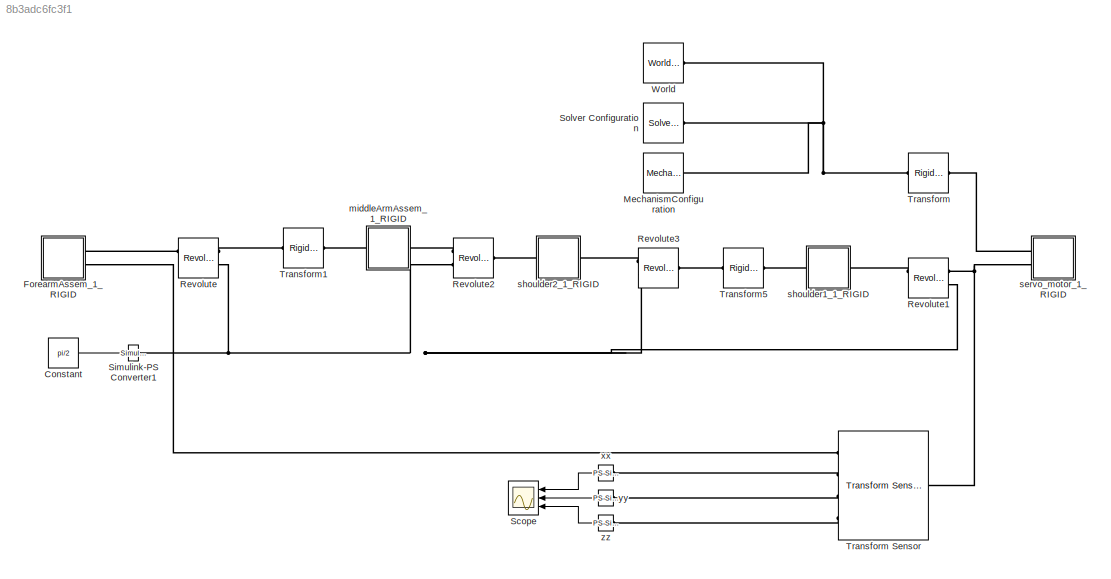
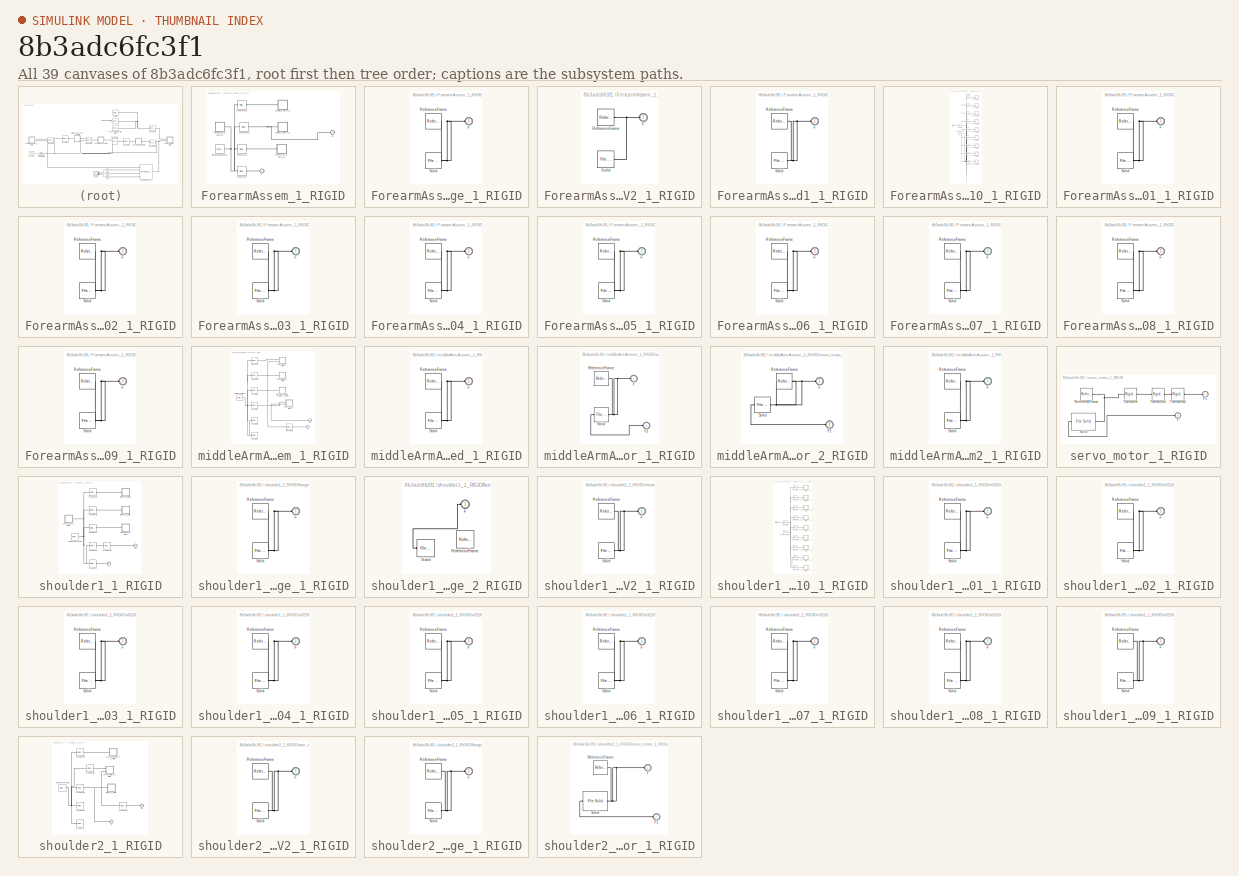
[diagram: thumbnail index - all 39 canvases of the model, root first then tree order]
MODEL slx_8b3adc6fc3f1
KIND model
CONFIG AbsTol = auto
CONFIG EnableMultiTasking = off
CONFIG FixedStep = auto
CONFIG MaxStep = auto
CONFIG MinStep = auto
CONFIG RelTol = 1e-3
CONFIG SampleTimeConstraint = Unconstrained
CONFIG SolverName = VariableStepAuto
CONFIG StartTime = 0.0
CONFIG StopTime = 10
WORKSPACE source: external: MATLAB File  (data not in archive)
BLOCK [Constant] Constant
  Value = pi/2
BLOCK [SubSystem] ForearmAssem_1_RIGID
  Ports = [0, 0, 0, 0, 0, 0, 2]
  RequestExecContextInheritance = off
BLOCK [PMIOPort] ForearmAssem_1_RIGID/F
  Side = Right
BLOCK [PMIOPort] ForearmAssem_1_RIGID/F1
  Port = 2
  Side = Right
BLOCK [Reference] ForearmAssem_1_RIGID/ReferenceFrame  REF=sm_lib/Frames and
Transforms/Reference
Frame
  Ports = [0, 0, 0, 0, 0, 0, 1]
  SourceBlock = sm_lib/Frames and\nTransforms/Reference\nFrame
  SourceProductBaseCode = MS
  SourceType = Reference\nFrame
BLOCK [Reference] ForearmAssem_1_RIGID/Transform  REF=sm_lib/Frames and
Transforms/Rigid
Transform
  Ports = [0, 0, 0, 0, 0, 1, 1]
  SourceBlock = sm_lib/Frames and\nTransforms/Rigid\nTransform
  SourceProductBaseCode = MS
  SourceType = Rigid\nTransform
BLOCK [Reference] ForearmAssem_1_RIGID/Transform1  REF=sm_lib/Frames and
Transforms/Rigid
Transform
  Ports = [0, 0, 0, 0, 0, 1, 1]
  SourceBlock = sm_lib/Frames and\nTransforms/Rigid\nTransform
  SourceProductBaseCode = MS
  SourceType = Rigid\nTransform
BLOCK [Reference] ForearmAssem_1_RIGID/Transform2  REF=sm_lib/Frames and
Transforms/Rigid
Transform
  Ports = [0, 0, 0, 0, 0, 1, 1]
  SourceBlock = sm_lib/Frames and\nTransforms/Rigid\nTransform
  SourceProductBaseCode = MS
  SourceType = Rigid\nTransform
BLOCK [Reference] ForearmAssem_1_RIGID/Transform3  REF=sm_lib/Frames and
Transforms/Rigid
Transform
  Ports = [0, 0, 0, 0, 0, 1, 1]
  SourceBlock = sm_lib/Frames and\nTransforms/Rigid\nTransform
  SourceProductBaseCode = MS
  SourceType = Rigid\nTransform
BLOCK [SubSystem] ForearmAssem_1_RIGID/flange_1_RIGID
  Ports = [0, 0, 0, 0, 0, 1]
  RequestExecContextInheritance = off
BLOCK [PMIOPort] ForearmAssem_1_RIGID/flange_1_RIGID/F
  Side = Left
BLOCK [Reference] ForearmAssem_1_RIGID/flange_1_RIGID/ReferenceFrame  REF=sm_lib/Frames and
Transforms/Reference
Frame
  Ports = [0, 0, 0, 0, 0, 0, 1]
  SourceBlock = sm_lib/Frames and\nTransforms/Reference\nFrame
  SourceProductBaseCode = MS
  SourceType = Reference\nFrame
BLOCK [Reference] ForearmAssem_1_RIGID/flange_1_RIGID/Solid  REF=sm_lib/Body Elements/File Solid
  Ports = [0, 0, 0, 0, 0, 0, 1]
  SourceBlock = sm_lib/Body Elements/File Solid
  SourceProductBaseCode = MS
  SourceType = File Solid
BLOCK [SubSystem] ForearmAssem_1_RIGID/forearmV2_1_RIGID
  Ports = [0, 0, 0, 0, 0, 1]
  RequestExecContextInheritance = off
BLOCK [PMIOPort] ForearmAssem_1_RIGID/forearmV2_1_RIGID/F
  Side = Left
BLOCK [Reference] ForearmAssem_1_RIGID/forearmV2_1_RIGID/ReferenceFrame  REF=sm_lib/Frames and
Transforms/Reference
Frame
  Ports = [0, 0, 0, 0, 0, 0, 1]
  SourceBlock = sm_lib/Frames and\nTransforms/Reference\nFrame
  SourceProductBaseCode = MS
  SourceType = Reference\nFrame
BLOCK [Reference] ForearmAssem_1_RIGID/forearmV2_1_RIGID/Solid  REF=sm_lib/Body Elements/File Solid
  Ports = [0, 0, 0, 0, 0, 0, 1]
  SourceBlock = sm_lib/Body Elements/File Solid
  SourceProductBaseCode = MS
  SourceType = File Solid
BLOCK [SubSystem] ForearmAssem_1_RIGID/hand1_1_RIGID
  Ports = [0, 0, 0, 0, 0, 1]
  RequestExecContextInheritance = off
BLOCK [PMIOPort] ForearmAssem_1_RIGID/hand1_1_RIGID/F
  Side = Left
BLOCK [Reference] ForearmAssem_1_RIGID/hand1_1_RIGID/ReferenceFrame  REF=sm_lib/Frames and
Transforms/Reference
Frame
  Ports = [0, 0, 0, 0, 0, 0, 1]
  SourceBlock = sm_lib/Frames and\nTransforms/Reference\nFrame
  SourceProductBaseCode = MS
  SourceType = Reference\nFrame
BLOCK [Reference] ForearmAssem_1_RIGID/hand1_1_RIGID/Solid  REF=sm_lib/Body Elements/File Solid
  Ports = [0, 0, 0, 0, 0, 0, 1]
  SourceBlock = sm_lib/Body Elements/File Solid
  SourceProductBaseCode = MS
  SourceType = File Solid
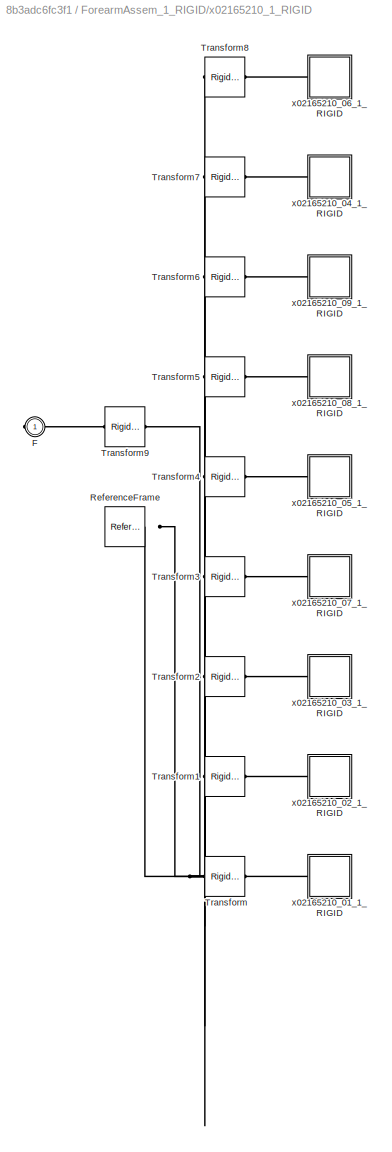
BLOCK [SubSystem] ForearmAssem_1_RIGID/x02165210_1_RIGID
  Ports = [0, 0, 0, 0, 0, 0, 1]
  RequestExecContextInheritance = off
BLOCK [PMIOPort] ForearmAssem_1_RIGID/x02165210_1_RIGID/F
  Side = Right
BLOCK [Reference] ForearmAssem_1_RIGID/x02165210_1_RIGID/ReferenceFrame  REF=sm_lib/Frames and
Transforms/Reference
Frame
  Ports = [0, 0, 0, 0, 0, 0, 1]
  SourceBlock = sm_lib/Frames and\nTransforms/Reference\nFrame
  SourceProductBaseCode = MS
  SourceType = Reference\nFrame
BLOCK [Reference] ForearmAssem_1_RIGID/x02165210_1_RIGID/Transform  REF=sm_lib/Frames and
Transforms/Rigid
Transform
  Ports = [0, 0, 0, 0, 0, 1, 1]
  SourceBlock = sm_lib/Frames and\nTransforms/Rigid\nTransform
  SourceProductBaseCode = MS
  SourceType = Rigid\nTransform
BLOCK [Reference] ForearmAssem_1_RIGID/x02165210_1_RIGID/Transform1  REF=sm_lib/Frames and
Transforms/Rigid
Transform
  Ports = [0, 0, 0, 0, 0, 1, 1]
  SourceBlock = sm_lib/Frames and\nTransforms/Rigid\nTransform
  SourceProductBaseCode = MS
  SourceType = Rigid\nTransform
BLOCK [Reference] ForearmAssem_1_RIGID/x02165210_1_RIGID/Transform2  REF=sm_lib/Frames and
Transforms/Rigid
Transform
  Ports = [0, 0, 0, 0, 0, 1, 1]
  SourceBlock = sm_lib/Frames and\nTransforms/Rigid\nTransform
  SourceProductBaseCode = MS
  SourceType = Rigid\nTransform
BLOCK [Reference] ForearmAssem_1_RIGID/x02165210_1_RIGID/Transform3  REF=sm_lib/Frames and
Transforms/Rigid
Transform
  Ports = [0, 0, 0, 0, 0, 1, 1]
  SourceBlock = sm_lib/Frames and\nTransforms/Rigid\nTransform
  SourceProductBaseCode = MS
  SourceType = Rigid\nTransform
BLOCK [Reference] ForearmAssem_1_RIGID/x02165210_1_RIGID/Transform4  REF=sm_lib/Frames and
Transforms/Rigid
Transform
  Ports = [0, 0, 0, 0, 0, 1, 1]
  SourceBlock = sm_lib/Frames and\nTransforms/Rigid\nTransform
  SourceProductBaseCode = MS
  SourceType = Rigid\nTransform
BLOCK [Reference] ForearmAssem_1_RIGID/x02165210_1_RIGID/Transform5  REF=sm_lib/Frames and
Transforms/Rigid
Transform
  Ports = [0, 0, 0, 0, 0, 1, 1]
  SourceBlock = sm_lib/Frames and\nTransforms/Rigid\nTransform
  SourceProductBaseCode = MS
  SourceType = Rigid\nTransform
BLOCK [Reference] ForearmAssem_1_RIGID/x02165210_1_RIGID/Transform6  REF=sm_lib/Frames and
Transforms/Rigid
Transform
  Ports = [0, 0, 0, 0, 0, 1, 1]
  SourceBlock = sm_lib/Frames and\nTransforms/Rigid\nTransform
  SourceProductBaseCode = MS
  SourceType = Rigid\nTransform
BLOCK [Reference] ForearmAssem_1_RIGID/x02165210_1_RIGID/Transform7  REF=sm_lib/Frames and
Transforms/Rigid
Transform
  Ports = [0, 0, 0, 0, 0, 1, 1]
  SourceBlock = sm_lib/Frames and\nTransforms/Rigid\nTransform
  SourceProductBaseCode = MS
  SourceType = Rigid\nTransform
BLOCK [Reference] ForearmAssem_1_RIGID/x02165210_1_RIGID/Transform8  REF=sm_lib/Frames and
Transforms/Rigid
Transform
  Ports = [0, 0, 0, 0, 0, 1, 1]
  SourceBlock = sm_lib/Frames and\nTransforms/Rigid\nTransform
  SourceProductBaseCode = MS
  SourceType = Rigid\nTransform
BLOCK [Reference] ForearmAssem_1_RIGID/x02165210_1_RIGID/Transform9  REF=sm_lib/Frames and
Transforms/Rigid
Transform
  Ports = [0, 0, 0, 0, 0, 1, 1]
  SourceBlock = sm_lib/Frames and\nTransforms/Rigid\nTransform
  SourceProductBaseCode = MS
  SourceType = Rigid\nTransform
BLOCK [SubSystem] ForearmAssem_1_RIGID/x02165210_1_RIGID/x02165210_01_1_RIGID
  Ports = [0, 0, 0, 0, 0, 1]
  RequestExecContextInheritance = off
BLOCK [PMIOPort] ForearmAssem_1_RIGID/x02165210_1_RIGID/x02165210_01_1_RIGID/F
  Side = Left
BLOCK [Reference] ForearmAssem_1_RIGID/x02165210_1_RIGID/x02165210_01_1_RIGID/ReferenceFrame  REF=sm_lib/Frames and
Transforms/Reference
Frame
  Ports = [0, 0, 0, 0, 0, 0, 1]
  SourceBlock = sm_lib/Frames and\nTransforms/Reference\nFrame
  SourceProductBaseCode = MS
  SourceType = Reference\nFrame
BLOCK [Reference] ForearmAssem_1_RIGID/x02165210_1_RIGID/x02165210_01_1_RIGID/Solid  REF=sm_lib/Body Elements/File Solid
  Ports = [0, 0, 0, 0, 0, 0, 1]
  SourceBlock = sm_lib/Body Elements/File Solid
  SourceProductBaseCode = MS
  SourceType = File Solid
BLOCK [SubSystem] ForearmAssem_1_RIGID/x02165210_1_RIGID/x02165210_02_1_RIGID
  Ports = [0, 0, 0, 0, 0, 1]
  RequestExecContextInheritance = off
BLOCK [PMIOPort] ForearmAssem_1_RIGID/x02165210_1_RIGID/x02165210_02_1_RIGID/F
  Side = Left
BLOCK [Reference] ForearmAssem_1_RIGID/x02165210_1_RIGID/x02165210_02_1_RIGID/ReferenceFrame  REF=sm_lib/Frames and
Transforms/Reference
Frame
  Ports = [0, 0, 0, 0, 0, 0, 1]
  SourceBlock = sm_lib/Frames and\nTransforms/Reference\nFrame
  SourceProductBaseCode = MS
  SourceType = Reference\nFrame
BLOCK [Reference] ForearmAssem_1_RIGID/x02165210_1_RIGID/x02165210_02_1_RIGID/Solid  REF=sm_lib/Body Elements/File Solid
  Ports = [0, 0, 0, 0, 0, 0, 1]
  SourceBlock = sm_lib/Body Elements/File Solid
  SourceProductBaseCode = MS
  SourceType = File Solid
BLOCK [SubSystem] ForearmAssem_1_RIGID/x02165210_1_RIGID/x02165210_03_1_RIGID
  Ports = [0, 0, 0, 0, 0, 1]
  RequestExecContextInheritance = off
BLOCK [PMIOPort] ForearmAssem_1_RIGID/x02165210_1_RIGID/x02165210_03_1_RIGID/F
  Side = Left
BLOCK [Reference] ForearmAssem_1_RIGID/x02165210_1_RIGID/x02165210_03_1_RIGID/ReferenceFrame  REF=sm_lib/Frames and
Transforms/Reference
Frame
  Ports = [0, 0, 0, 0, 0, 0, 1]
  SourceBlock = sm_lib/Frames and\nTransforms/Reference\nFrame
  SourceProductBaseCode = MS
  SourceType = Reference\nFrame
BLOCK [Reference] ForearmAssem_1_RIGID/x02165210_1_RIGID/x02165210_03_1_RIGID/Solid  REF=sm_lib/Body Elements/File Solid
  Ports = [0, 0, 0, 0, 0, 0, 1]
  SourceBlock = sm_lib/Body Elements/File Solid
  SourceProductBaseCode = MS
  SourceType = File Solid
BLOCK [SubSystem] ForearmAssem_1_RIGID/x02165210_1_RIGID/x02165210_04_1_RIGID
  Ports = [0, 0, 0, 0, 0, 1]
  RequestExecContextInheritance = off
BLOCK [PMIOPort] ForearmAssem_1_RIGID/x02165210_1_RIGID/x02165210_04_1_RIGID/F
  Side = Left
BLOCK [Reference] ForearmAssem_1_RIGID/x02165210_1_RIGID/x02165210_04_1_RIGID/ReferenceFrame  REF=sm_lib/Frames and
Transforms/Reference
Frame
  Ports = [0, 0, 0, 0, 0, 0, 1]
  SourceBlock = sm_lib/Frames and\nTransforms/Reference\nFrame
  SourceProductBaseCode = MS
  SourceType = Reference\nFrame
BLOCK [Reference] ForearmAssem_1_RIGID/x02165210_1_RIGID/x02165210_04_1_RIGID/Solid  REF=sm_lib/Body Elements/File Solid
  Ports = [0, 0, 0, 0, 0, 0, 1]
  SourceBlock = sm_lib/Body Elements/File Solid
  SourceProductBaseCode = MS
  SourceType = File Solid
BLOCK [SubSystem] ForearmAssem_1_RIGID/x02165210_1_RIGID/x02165210_05_1_RIGID
  Ports = [0, 0, 0, 0, 0, 1]
  RequestExecContextInheritance = off
BLOCK [PMIOPort] ForearmAssem_1_RIGID/x02165210_1_RIGID/x02165210_05_1_RIGID/F
  Side = Left
BLOCK [Reference] ForearmAssem_1_RIGID/x02165210_1_RIGID/x02165210_05_1_RIGID/ReferenceFrame  REF=sm_lib/Frames and
Transforms/Reference
Frame
  Ports = [0, 0, 0, 0, 0, 0, 1]
  SourceBlock = sm_lib/Frames and\nTransforms/Reference\nFrame
  SourceProductBaseCode = MS
  SourceType = Reference\nFrame
BLOCK [Reference] ForearmAssem_1_RIGID/x02165210_1_RIGID/x02165210_05_1_RIGID/Solid  REF=sm_lib/Body Elements/File Solid
  Ports = [0, 0, 0, 0, 0, 0, 1]
  SourceBlock = sm_lib/Body Elements/File Solid
  SourceProductBaseCode = MS
  SourceType = File Solid
BLOCK [SubSystem] ForearmAssem_1_RIGID/x02165210_1_RIGID/x02165210_06_1_RIGID
  Ports = [0, 0, 0, 0, 0, 1]
  RequestExecContextInheritance = off
BLOCK [PMIOPort] ForearmAssem_1_RIGID/x02165210_1_RIGID/x02165210_06_1_RIGID/F
  Side = Left
BLOCK [Reference] ForearmAssem_1_RIGID/x02165210_1_RIGID/x02165210_06_1_RIGID/ReferenceFrame  REF=sm_lib/Frames and
Transforms/Reference
Frame
  Ports = [0, 0, 0, 0, 0, 0, 1]
  SourceBlock = sm_lib/Frames and\nTransforms/Reference\nFrame
  SourceProductBaseCode = MS
  SourceType = Reference\nFrame
BLOCK [Reference] ForearmAssem_1_RIGID/x02165210_1_RIGID/x02165210_06_1_RIGID/Solid  REF=sm_lib/Body Elements/File Solid
  Ports = [0, 0, 0, 0, 0, 0, 1]
  SourceBlock = sm_lib/Body Elements/File Solid
  SourceProductBaseCode = MS
  SourceType = File Solid
BLOCK [SubSystem] ForearmAssem_1_RIGID/x02165210_1_RIGID/x02165210_07_1_RIGID
  Ports = [0, 0, 0, 0, 0, 1]
  RequestExecContextInheritance = off
BLOCK [PMIOPort] ForearmAssem_1_RIGID/x02165210_1_RIGID/x02165210_07_1_RIGID/F
  Side = Left
BLOCK [Reference] ForearmAssem_1_RIGID/x02165210_1_RIGID/x02165210_07_1_RIGID/ReferenceFrame  REF=sm_lib/Frames and
Transforms/Reference
Frame
  Ports = [0, 0, 0, 0, 0, 0, 1]
  SourceBlock = sm_lib/Frames and\nTransforms/Reference\nFrame
  SourceProductBaseCode = MS
  SourceType = Reference\nFrame
BLOCK [Reference] ForearmAssem_1_RIGID/x02165210_1_RIGID/x02165210_07_1_RIGID/Solid  REF=sm_lib/Body Elements/File Solid
  Ports = [0, 0, 0, 0, 0, 0, 1]
  SourceBlock = sm_lib/Body Elements/File Solid
  SourceProductBaseCode = MS
  SourceType = File Solid
BLOCK [SubSystem] ForearmAssem_1_RIGID/x02165210_1_RIGID/x02165210_08_1_RIGID
  Ports = [0, 0, 0, 0, 0, 1]
  RequestExecContextInheritance = off
BLOCK [PMIOPort] ForearmAssem_1_RIGID/x02165210_1_RIGID/x02165210_08_1_RIGID/F
  Side = Left
BLOCK [Reference] ForearmAssem_1_RIGID/x02165210_1_RIGID/x02165210_08_1_RIGID/ReferenceFrame  REF=sm_lib/Frames and
Transforms/Reference
Frame
  Ports = [0, 0, 0, 0, 0, 0, 1]
  SourceBlock = sm_lib/Frames and\nTransforms/Reference\nFrame
  SourceProductBaseCode = MS
  SourceType = Reference\nFrame
BLOCK [Reference] ForearmAssem_1_RIGID/x02165210_1_RIGID/x02165210_08_1_RIGID/Solid  REF=sm_lib/Body Elements/File Solid
  Ports = [0, 0, 0, 0, 0, 0, 1]
  SourceBlock = sm_lib/Body Elements/File Solid
  SourceProductBaseCode = MS
  SourceType = File Solid
BLOCK [SubSystem] ForearmAssem_1_RIGID/x02165210_1_RIGID/x02165210_09_1_RIGID
  Ports = [0, 0, 0, 0, 0, 1]
  RequestExecContextInheritance = off
BLOCK [PMIOPort] ForearmAssem_1_RIGID/x02165210_1_RIGID/x02165210_09_1_RIGID/F
  Side = Left
BLOCK [Reference] ForearmAssem_1_RIGID/x02165210_1_RIGID/x02165210_09_1_RIGID/ReferenceFrame  REF=sm_lib/Frames and
Transforms/Reference
Frame
  Ports = [0, 0, 0, 0, 0, 0, 1]
  SourceBlock = sm_lib/Frames and\nTransforms/Reference\nFrame
  SourceProductBaseCode = MS
  SourceType = Reference\nFrame
BLOCK [Reference] ForearmAssem_1_RIGID/x02165210_1_RIGID/x02165210_09_1_RIGID/Solid  REF=sm_lib/Body Elements/File Solid
  Ports = [0, 0, 0, 0, 0, 0, 1]
  SourceBlock = sm_lib/Body Elements/File Solid
  SourceProductBaseCode = MS
  SourceType = File Solid
BLOCK [Reference] MechanismConfiguration  REF=sm_lib/Utilities/Mechanism
Configuration
  Ports = [0, 0, 0, 0, 0, 0, 1]
  SourceBlock = sm_lib/Utilities/Mechanism\nConfiguration
  SourceProductBaseCode = MS
  SourceType = Mechanism\nConfiguration
BLOCK [Reference] Revolute  REF=sm_lib/Joints/Revolute Joint
  Ports = [0, 0, 0, 0, 0, 2, 2]
  SourceBlock = sm_lib/Joints/Revolute Joint
  SourceProductBaseCode = MS
  SourceType = Revolute Joint
BLOCK [Reference] Revolute1  REF=sm_lib/Joints/Revolute Joint
  Ports = [0, 0, 0, 0, 0, 2, 2]
  SourceBlock = sm_lib/Joints/Revolute Joint
  SourceProductBaseCode = MS
  SourceType = Revolute Joint
BLOCK [Reference] Revolute2  REF=sm_lib/Joints/Revolute Joint
  Ports = [0, 0, 0, 0, 0, 2, 1]
  SourceBlock = sm_lib/Joints/Revolute Joint
  SourceProductBaseCode = MS
  SourceType = Revolute Joint
BLOCK [Reference] Revolute3  REF=sm_lib/Joints/Revolute Joint
  Ports = [0, 0, 0, 0, 0, 2, 1]
  SourceBlock = sm_lib/Joints/Revolute Joint
  SourceProductBaseCode = MS
  SourceType = Revolute Joint
BLOCK [Scope] Scope
  Floating = off
  NumInputPorts = 3
  Ports = [3]
  ScopeSpecificationString = Simulink.scopes.TimeScopeBlockCfg('CurrentConfiguration', extmgr.ConfigurationSet(extmgr.Configuration('Core','General UI',true,'FigureColor',[1 1 1]),extmgr.Configuration('Core','Source UI',true),extmgr.Configuration('Sources','WiredSimulink',true),extmgr.Configuration('Visuals','Time Domain',true,'SerializedDisplays',{struct('MinYLimReal','-0.27881','MaxYLimReal','0.07813','YLabelReal','','MinYL...<+1711ch>
BLOCK [Reference] Simulink-PS Converter1  REF=nesl_utility/Simulink-PS
Converter
  Ports = [1, 0, 0, 0, 0, 0, 1]
  SourceBlock = nesl_utility/Simulink-PS\nConverter
  SourceProductBaseCode = PW,SS
  SourceType = Simulink-PS\nConverter
BLOCK [Reference] Solver Configuration  REF=nesl_utility/Solver
Configuration
  Ports = [0, 0, 0, 0, 0, 0, 1]
  SourceBlock = nesl_utility/Solver\nConfiguration
  SourceProductBaseCode = PW,SS
  SourceType = Solver\nConfiguration
BLOCK [Reference] Transform  REF=sm_lib/Frames and
Transforms/Rigid
Transform
  Ports = [0, 0, 0, 0, 0, 1, 1]
  SourceBlock = sm_lib/Frames and\nTransforms/Rigid\nTransform
  SourceProductBaseCode = MS
  SourceType = Rigid\nTransform
BLOCK [Reference] Transform Sensor  REF=sm_lib/Frames and
Transforms/Transform
Sensor
  Ports = [0, 0, 0, 0, 0, 1, 4]
  SourceBlock = sm_lib/Frames and\nTransforms/Transform\nSensor
  SourceProductBaseCode = MS
  SourceType = Transform\nSensor
BLOCK [Reference] Transform1  REF=sm_lib/Frames and
Transforms/Rigid
Transform
  Ports = [0, 0, 0, 0, 0, 1, 1]
  SourceBlock = sm_lib/Frames and\nTransforms/Rigid\nTransform
  SourceProductBaseCode = MS
  SourceType = Rigid\nTransform
BLOCK [Reference] Transform5  REF=sm_lib/Frames and
Transforms/Rigid
Transform
  Ports = [0, 0, 0, 0, 0, 1, 1]
  SourceBlock = sm_lib/Frames and\nTransforms/Rigid\nTransform
  SourceProductBaseCode = MS
  SourceType = Rigid\nTransform
BLOCK [Reference] World  REF=sm_lib/Frames and
Transforms/World Frame
  Ports = [0, 0, 0, 0, 0, 0, 1]
  SourceBlock = sm_lib/Frames and\nTransforms/World Frame
  SourceProductBaseCode = MS
  SourceType = World Frame
BLOCK [SubSystem] middleArmAssem_1_RIGID
  Ports = [0, 0, 0, 0, 0, 1, 1]
  RequestExecContextInheritance = off
BLOCK [PMIOPort] middleArmAssem_1_RIGID/F
  Side = Left
BLOCK [PMIOPort] middleArmAssem_1_RIGID/F1
  Port = 2
  Side = Right
BLOCK [Reference] middleArmAssem_1_RIGID/ReferenceFrame  REF=sm_lib/Frames and
Transforms/Reference
Frame
  Ports = [0, 0, 0, 0, 0, 0, 1]
  SourceBlock = sm_lib/Frames and\nTransforms/Reference\nFrame
  SourceProductBaseCode = MS
  SourceType = Reference\nFrame
BLOCK [Reference] middleArmAssem_1_RIGID/Transform  REF=sm_lib/Frames and
Transforms/Rigid
Transform
  Ports = [0, 0, 0, 0, 0, 1, 1]
  SourceBlock = sm_lib/Frames and\nTransforms/Rigid\nTransform
  SourceProductBaseCode = MS
  SourceType = Rigid\nTransform
BLOCK [Reference] middleArmAssem_1_RIGID/Transform1  REF=sm_lib/Frames and
Transforms/Rigid
Transform
  Ports = [0, 0, 0, 0, 0, 1, 1]
  SourceBlock = sm_lib/Frames and\nTransforms/Rigid\nTransform
  SourceProductBaseCode = MS
  SourceType = Rigid\nTransform
BLOCK [Reference] middleArmAssem_1_RIGID/Transform2  REF=sm_lib/Frames and
Transforms/Rigid
Transform
  Ports = [0, 0, 0, 0, 0, 1, 1]
  SourceBlock = sm_lib/Frames and\nTransforms/Rigid\nTransform
  SourceProductBaseCode = MS
  SourceType = Rigid\nTransform
BLOCK [Reference] middleArmAssem_1_RIGID/Transform3  REF=sm_lib/Frames and
Transforms/Rigid
Transform
  Ports = [0, 0, 0, 0, 0, 1, 1]
  SourceBlock = sm_lib/Frames and\nTransforms/Rigid\nTransform
  SourceProductBaseCode = MS
  SourceType = Rigid\nTransform
BLOCK [Reference] middleArmAssem_1_RIGID/Transform4  REF=sm_lib/Frames and
Transforms/Rigid
Transform
  Ports = [0, 0, 0, 0, 0, 1, 1]
  SourceBlock = sm_lib/Frames and\nTransforms/Rigid\nTransform
  SourceProductBaseCode = MS
  SourceType = Rigid\nTransform
BLOCK [Reference] middleArmAssem_1_RIGID/Transform5  REF=sm_lib/Frames and
Transforms/Rigid
Transform
  Ports = [0, 0, 0, 0, 0, 1, 1]
  SourceBlock = sm_lib/Frames and\nTransforms/Rigid\nTransform
  SourceProductBaseCode = MS
  SourceType = Rigid\nTransform
BLOCK [Reference] middleArmAssem_1_RIGID/Transform6  REF=sm_lib/Frames and
Transforms/Rigid
Transform
  Ports = [0, 0, 0, 0, 0, 1, 1]
  SourceBlock = sm_lib/Frames and\nTransforms/Rigid\nTransform
  SourceProductBaseCode = MS
  SourceType = Rigid\nTransform
BLOCK [SubSystem] middleArmAssem_1_RIGID/arm_connectorV2_modified_1_RIGID
  Ports = [0, 0, 0, 0, 0, 1]
  RequestExecContextInheritance = off
BLOCK [PMIOPort] middleArmAssem_1_RIGID/arm_connectorV2_modified_1_RIGID/F
  Side = Left
BLOCK [Reference] middleArmAssem_1_RIGID/arm_connectorV2_modified_1_RIGID/ReferenceFrame  REF=sm_lib/Frames and
Transforms/Reference
Frame
  Ports = [0, 0, 0, 0, 0, 0, 1]
  SourceBlock = sm_lib/Frames and\nTransforms/Reference\nFrame
  SourceProductBaseCode = MS
  SourceType = Reference\nFrame
BLOCK [Reference] middleArmAssem_1_RIGID/arm_connectorV2_modified_1_RIGID/Solid  REF=sm_lib/Body Elements/File Solid
  Ports = [0, 0, 0, 0, 0, 0, 1]
  SourceBlock = sm_lib/Body Elements/File Solid
  SourceProductBaseCode = MS
  SourceType = File Solid
BLOCK [SubSystem] middleArmAssem_1_RIGID/servo_motor_1_RIGID
  Ports = [0, 0, 0, 0, 0, 2]
  RequestExecContextInheritance = off
BLOCK [PMIOPort] middleArmAssem_1_RIGID/servo_motor_1_RIGID/F
  Side = Left
BLOCK [PMIOPort] middleArmAssem_1_RIGID/servo_motor_1_RIGID/F1
  Port = 2
  Side = Left
BLOCK [Reference] middleArmAssem_1_RIGID/servo_motor_1_RIGID/ReferenceFrame  REF=sm_lib/Frames and
Transforms/Reference
Frame
  Ports = [0, 0, 0, 0, 0, 0, 1]
  SourceBlock = sm_lib/Frames and\nTransforms/Reference\nFrame
  SourceProductBaseCode = MS
  SourceType = Reference\nFrame
BLOCK [Reference] middleArmAssem_1_RIGID/servo_motor_1_RIGID/Solid  REF=sm_lib/Body Elements/File Solid
  Ports = [0, 0, 0, 0, 0, 1, 1]
  SourceBlock = sm_lib/Body Elements/File Solid
  SourceProductBaseCode = MS
  SourceType = File Solid
BLOCK [SubSystem] middleArmAssem_1_RIGID/servo_motor_2_RIGID
  Ports = [0, 0, 0, 0, 0, 2]
  RequestExecContextInheritance = off
BLOCK [PMIOPort] middleArmAssem_1_RIGID/servo_motor_2_RIGID/F
  Side = Left
BLOCK [PMIOPort] middleArmAssem_1_RIGID/servo_motor_2_RIGID/F1
  Port = 2
  Side = Left
BLOCK [Reference] middleArmAssem_1_RIGID/servo_motor_2_RIGID/ReferenceFrame  REF=sm_lib/Frames and
Transforms/Reference
Frame
  Ports = [0, 0, 0, 0, 0, 0, 1]
  SourceBlock = sm_lib/Frames and\nTransforms/Reference\nFrame
  SourceProductBaseCode = MS
  SourceType = Reference\nFrame
BLOCK [Reference] middleArmAssem_1_RIGID/servo_motor_2_RIGID/Solid  REF=sm_lib/Body Elements/File Solid
  Ports = [0, 0, 0, 0, 0, 1, 1]
  SourceBlock = sm_lib/Body Elements/File Solid
  SourceProductBaseCode = MS
  SourceType = File Solid
BLOCK [SubSystem] middleArmAssem_1_RIGID/upper_arm2_1_RIGID
  Ports = [0, 0, 0, 0, 0, 1]
  RequestExecContextInheritance = off
BLOCK [PMIOPort] middleArmAssem_1_RIGID/upper_arm2_1_RIGID/F
  Side = Left
BLOCK [Reference] middleArmAssem_1_RIGID/upper_arm2_1_RIGID/ReferenceFrame  REF=sm_lib/Frames and
Transforms/Reference
Frame
  Ports = [0, 0, 0, 0, 0, 0, 1]
  SourceBlock = sm_lib/Frames and\nTransforms/Reference\nFrame
  SourceProductBaseCode = MS
  SourceType = Reference\nFrame
BLOCK [Reference] middleArmAssem_1_RIGID/upper_arm2_1_RIGID/Solid  REF=sm_lib/Body Elements/File Solid
  Ports = [0, 0, 0, 0, 0, 0, 1]
  SourceBlock = sm_lib/Body Elements/File Solid
  SourceProductBaseCode = MS
  SourceType = File Solid
BLOCK [SubSystem] servo_motor_1_RIGID
  Ports = [0, 0, 0, 0, 0, 2]
  RequestExecContextInheritance = off
BLOCK [PMIOPort] servo_motor_1_RIGID/F
  Port = 2
  Side = Left
BLOCK [PMIOPort] servo_motor_1_RIGID/F1
  Side = Left
BLOCK [Reference] servo_motor_1_RIGID/ReferenceFrame  REF=sm_lib/Frames and
Transforms/Reference
Frame
  Ports = [0, 0, 0, 0, 0, 0, 1]
  SourceBlock = sm_lib/Frames and\nTransforms/Reference\nFrame
  SourceProductBaseCode = MS
  SourceType = Reference\nFrame
BLOCK [Reference] servo_motor_1_RIGID/Solid  REF=sm_lib/Body Elements/File Solid
  Ports = [0, 0, 0, 0, 0, 1, 1]
  SourceBlock = sm_lib/Body Elements/File Solid
  SourceProductBaseCode = MS
  SourceType = File Solid
BLOCK [Reference] servo_motor_1_RIGID/Transform  REF=sm_lib/Frames and
Transforms/Rigid
Transform
  Ports = [0, 0, 0, 0, 0, 1, 1]
  SourceBlock = sm_lib/Frames and\nTransforms/Rigid\nTransform
  SourceProductBaseCode = MS
  SourceType = Rigid\nTransform
BLOCK [Reference] servo_motor_1_RIGID/Transform1  REF=sm_lib/Frames and
Transforms/Rigid
Transform
  Ports = [0, 0, 0, 0, 0, 1, 1]
  SourceBlock = sm_lib/Frames and\nTransforms/Rigid\nTransform
  SourceProductBaseCode = MS
  SourceType = Rigid\nTransform
BLOCK [Reference] servo_motor_1_RIGID/Transform2  REF=sm_lib/Frames and
Transforms/Rigid
Transform
  Ports = [0, 0, 0, 0, 0, 1, 1]
  SourceBlock = sm_lib/Frames and\nTransforms/Rigid\nTransform
  SourceProductBaseCode = MS
  SourceType = Rigid\nTransform
BLOCK [SubSystem] shoulder1_1_RIGID
  NameLocation = left
  Ports = [0, 0, 0, 0, 0, 1, 1]
  RequestExecContextInheritance = off
BLOCK [PMIOPort] shoulder1_1_RIGID/F
  Port = 2
  Side = Right
BLOCK [PMIOPort] shoulder1_1_RIGID/F1
  Side = Left
BLOCK [Reference] shoulder1_1_RIGID/ReferenceFrame  REF=sm_lib/Frames and
Transforms/Reference
Frame
  Ports = [0, 0, 0, 0, 0, 0, 1]
  SourceBlock = sm_lib/Frames and\nTransforms/Reference\nFrame
  SourceProductBaseCode = MS
  SourceType = Reference\nFrame
BLOCK [Reference] shoulder1_1_RIGID/Transform  REF=sm_lib/Frames and
Transforms/Rigid
Transform
  Ports = [0, 0, 0, 0, 0, 1, 1]
  SourceBlock = sm_lib/Frames and\nTransforms/Rigid\nTransform
  SourceProductBaseCode = MS
  SourceType = Rigid\nTransform
BLOCK [Reference] shoulder1_1_RIGID/Transform1  REF=sm_lib/Frames and
Transforms/Rigid
Transform
  Ports = [0, 0, 0, 0, 0, 1, 1]
  SourceBlock = sm_lib/Frames and\nTransforms/Rigid\nTransform
  SourceProductBaseCode = MS
  SourceType = Rigid\nTransform
BLOCK [Reference] shoulder1_1_RIGID/Transform2  REF=sm_lib/Frames and
Transforms/Rigid
Transform
  Ports = [0, 0, 0, 0, 0, 1, 1]
  SourceBlock = sm_lib/Frames and\nTransforms/Rigid\nTransform
  SourceProductBaseCode = MS
  SourceType = Rigid\nTransform
BLOCK [Reference] shoulder1_1_RIGID/Transform3  REF=sm_lib/Frames and
Transforms/Rigid
Transform
  Ports = [0, 0, 0, 0, 0, 1, 1]
  SourceBlock = sm_lib/Frames and\nTransforms/Rigid\nTransform
  SourceProductBaseCode = MS
  SourceType = Rigid\nTransform
BLOCK [Reference] shoulder1_1_RIGID/Transform4  REF=sm_lib/Frames and
Transforms/Rigid
Transform
  Ports = [0, 0, 0, 0, 0, 1, 1]
  SourceBlock = sm_lib/Frames and\nTransforms/Rigid\nTransform
  SourceProductBaseCode = MS
  SourceType = Rigid\nTransform
BLOCK [Reference] shoulder1_1_RIGID/Transform5  REF=sm_lib/Frames and
Transforms/Rigid
Transform
  Ports = [0, 0, 0, 0, 0, 1, 1]
  SourceBlock = sm_lib/Frames and\nTransforms/Rigid\nTransform
  SourceProductBaseCode = MS
  SourceType = Rigid\nTransform
BLOCK [SubSystem] shoulder1_1_RIGID/flange_1_RIGID
  Ports = [0, 0, 0, 0, 0, 1]
  RequestExecContextInheritance = off
BLOCK [PMIOPort] shoulder1_1_RIGID/flange_1_RIGID/F
  Side = Left
BLOCK [Reference] shoulder1_1_RIGID/flange_1_RIGID/ReferenceFrame  REF=sm_lib/Frames and
Transforms/Reference
Frame
  Ports = [0, 0, 0, 0, 0, 0, 1]
  SourceBlock = sm_lib/Frames and\nTransforms/Reference\nFrame
  SourceProductBaseCode = MS
  SourceType = Reference\nFrame
BLOCK [Reference] shoulder1_1_RIGID/flange_1_RIGID/Solid  REF=sm_lib/Body Elements/File Solid
  Ports = [0, 0, 0, 0, 0, 0, 1]
  SourceBlock = sm_lib/Body Elements/File Solid
  SourceProductBaseCode = MS
  SourceType = File Solid
BLOCK [SubSystem] shoulder1_1_RIGID/flange_2_RIGID
  Ports = [0, 0, 0, 0, 0, 1]
  RequestExecContextInheritance = off
BLOCK [PMIOPort] shoulder1_1_RIGID/flange_2_RIGID/F
  Side = Left
BLOCK [Reference] shoulder1_1_RIGID/flange_2_RIGID/ReferenceFrame  REF=sm_lib/Frames and
Transforms/Reference
Frame
  Ports = [0, 0, 0, 0, 0, 0, 1]
  SourceBlock = sm_lib/Frames and\nTransforms/Reference\nFrame
  SourceProductBaseCode = MS
  SourceType = Reference\nFrame
BLOCK [Reference] shoulder1_1_RIGID/flange_2_RIGID/Solid  REF=sm_lib/Body Elements/File Solid
  Ports = [0, 0, 0, 0, 0, 1]
  SourceBlock = sm_lib/Body Elements/File Solid
  SourceProductBaseCode = MS
  SourceType = File Solid
BLOCK [SubSystem] shoulder1_1_RIGID/shoulderV2_1_RIGID
  Ports = [0, 0, 0, 0, 0, 1]
  RequestExecContextInheritance = off
BLOCK [PMIOPort] shoulder1_1_RIGID/shoulderV2_1_RIGID/F
  Side = Left
BLOCK [Reference] shoulder1_1_RIGID/shoulderV2_1_RIGID/ReferenceFrame  REF=sm_lib/Frames and
Transforms/Reference
Frame
  Ports = [0, 0, 0, 0, 0, 0, 1]
  SourceBlock = sm_lib/Frames and\nTransforms/Reference\nFrame
  SourceProductBaseCode = MS
  SourceType = Reference\nFrame
BLOCK [Reference] shoulder1_1_RIGID/shoulderV2_1_RIGID/Solid  REF=sm_lib/Body Elements/File Solid
  Ports = [0, 0, 0, 0, 0, 0, 1]
  SourceBlock = sm_lib/Body Elements/File Solid
  SourceProductBaseCode = MS
  SourceType = File Solid
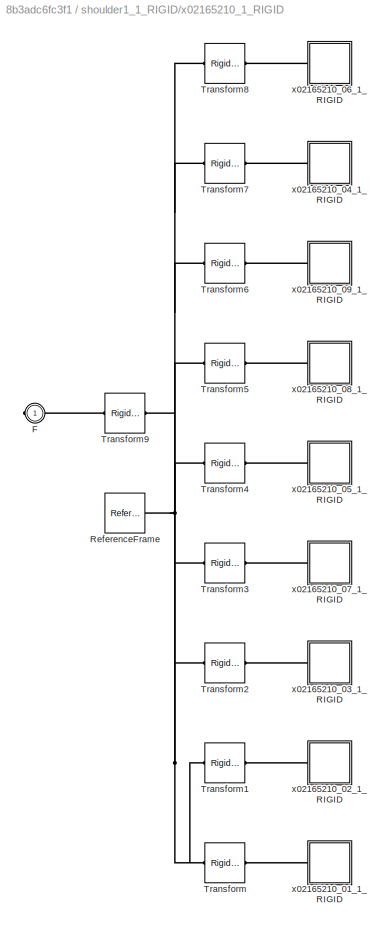
BLOCK [SubSystem] shoulder1_1_RIGID/x02165210_1_RIGID
  Ports = [0, 0, 0, 0, 0, 0, 1]
  RequestExecContextInheritance = off
BLOCK [PMIOPort] shoulder1_1_RIGID/x02165210_1_RIGID/F
  Side = Right
BLOCK [Reference] shoulder1_1_RIGID/x02165210_1_RIGID/ReferenceFrame  REF=sm_lib/Frames and
Transforms/Reference
Frame
  Ports = [0, 0, 0, 0, 0, 0, 1]
  SourceBlock = sm_lib/Frames and\nTransforms/Reference\nFrame
  SourceProductBaseCode = MS
  SourceType = Reference\nFrame
BLOCK [Reference] shoulder1_1_RIGID/x02165210_1_RIGID/Transform  REF=sm_lib/Frames and
Transforms/Rigid
Transform
  Ports = [0, 0, 0, 0, 0, 1, 1]
  SourceBlock = sm_lib/Frames and\nTransforms/Rigid\nTransform
  SourceProductBaseCode = MS
  SourceType = Rigid\nTransform
BLOCK [Reference] shoulder1_1_RIGID/x02165210_1_RIGID/Transform1  REF=sm_lib/Frames and
Transforms/Rigid
Transform
  Ports = [0, 0, 0, 0, 0, 1, 1]
  SourceBlock = sm_lib/Frames and\nTransforms/Rigid\nTransform
  SourceProductBaseCode = MS
  SourceType = Rigid\nTransform
BLOCK [Reference] shoulder1_1_RIGID/x02165210_1_RIGID/Transform2  REF=sm_lib/Frames and
Transforms/Rigid
Transform
  Ports = [0, 0, 0, 0, 0, 1, 1]
  SourceBlock = sm_lib/Frames and\nTransforms/Rigid\nTransform
  SourceProductBaseCode = MS
  SourceType = Rigid\nTransform
BLOCK [Reference] shoulder1_1_RIGID/x02165210_1_RIGID/Transform3  REF=sm_lib/Frames and
Transforms/Rigid
Transform
  Ports = [0, 0, 0, 0, 0, 1, 1]
  SourceBlock = sm_lib/Frames and\nTransforms/Rigid\nTransform
  SourceProductBaseCode = MS
  SourceType = Rigid\nTransform
BLOCK [Reference] shoulder1_1_RIGID/x02165210_1_RIGID/Transform4  REF=sm_lib/Frames and
Transforms/Rigid
Transform
  Ports = [0, 0, 0, 0, 0, 1, 1]
  SourceBlock = sm_lib/Frames and\nTransforms/Rigid\nTransform
  SourceProductBaseCode = MS
  SourceType = Rigid\nTransform
BLOCK [Reference] shoulder1_1_RIGID/x02165210_1_RIGID/Transform5  REF=sm_lib/Frames and
Transforms/Rigid
Transform
  Ports = [0, 0, 0, 0, 0, 1, 1]
  SourceBlock = sm_lib/Frames and\nTransforms/Rigid\nTransform
  SourceProductBaseCode = MS
  SourceType = Rigid\nTransform
BLOCK [Reference] shoulder1_1_RIGID/x02165210_1_RIGID/Transform6  REF=sm_lib/Frames and
Transforms/Rigid
Transform
  Ports = [0, 0, 0, 0, 0, 1, 1]
  SourceBlock = sm_lib/Frames and\nTransforms/Rigid\nTransform
  SourceProductBaseCode = MS
  SourceType = Rigid\nTransform
BLOCK [Reference] shoulder1_1_RIGID/x02165210_1_RIGID/Transform7  REF=sm_lib/Frames and
Transforms/Rigid
Transform
  Ports = [0, 0, 0, 0, 0, 1, 1]
  SourceBlock = sm_lib/Frames and\nTransforms/Rigid\nTransform
  SourceProductBaseCode = MS
  SourceType = Rigid\nTransform
BLOCK [Reference] shoulder1_1_RIGID/x02165210_1_RIGID/Transform8  REF=sm_lib/Frames and
Transforms/Rigid
Transform
  Ports = [0, 0, 0, 0, 0, 1, 1]
  SourceBlock = sm_lib/Frames and\nTransforms/Rigid\nTransform
  SourceProductBaseCode = MS
  SourceType = Rigid\nTransform
BLOCK [Reference] shoulder1_1_RIGID/x02165210_1_RIGID/Transform9  REF=sm_lib/Frames and
Transforms/Rigid
Transform
  Ports = [0, 0, 0, 0, 0, 1, 1]
  SourceBlock = sm_lib/Frames and\nTransforms/Rigid\nTransform
  SourceProductBaseCode = MS
  SourceType = Rigid\nTransform
BLOCK [SubSystem] shoulder1_1_RIGID/x02165210_1_RIGID/x02165210_01_1_RIGID
  Ports = [0, 0, 0, 0, 0, 1]
  RequestExecContextInheritance = off
BLOCK [PMIOPort] shoulder1_1_RIGID/x02165210_1_RIGID/x02165210_01_1_RIGID/F
  Side = Left
BLOCK [Reference] shoulder1_1_RIGID/x02165210_1_RIGID/x02165210_01_1_RIGID/ReferenceFrame  REF=sm_lib/Frames and
Transforms/Reference
Frame
  Ports = [0, 0, 0, 0, 0, 0, 1]
  SourceBlock = sm_lib/Frames and\nTransforms/Reference\nFrame
  SourceProductBaseCode = MS
  SourceType = Reference\nFrame
BLOCK [Reference] shoulder1_1_RIGID/x02165210_1_RIGID/x02165210_01_1_RIGID/Solid  REF=sm_lib/Body Elements/File Solid
  Ports = [0, 0, 0, 0, 0, 0, 1]
  SourceBlock = sm_lib/Body Elements/File Solid
  SourceProductBaseCode = MS
  SourceType = File Solid
BLOCK [SubSystem] shoulder1_1_RIGID/x02165210_1_RIGID/x02165210_02_1_RIGID
  Ports = [0, 0, 0, 0, 0, 1]
  RequestExecContextInheritance = off
BLOCK [PMIOPort] shoulder1_1_RIGID/x02165210_1_RIGID/x02165210_02_1_RIGID/F
  Side = Left
BLOCK [Reference] shoulder1_1_RIGID/x02165210_1_RIGID/x02165210_02_1_RIGID/ReferenceFrame  REF=sm_lib/Frames and
Transforms/Reference
Frame
  Ports = [0, 0, 0, 0, 0, 0, 1]
  SourceBlock = sm_lib/Frames and\nTransforms/Reference\nFrame
  SourceProductBaseCode = MS
  SourceType = Reference\nFrame
BLOCK [Reference] shoulder1_1_RIGID/x02165210_1_RIGID/x02165210_02_1_RIGID/Solid  REF=sm_lib/Body Elements/File Solid
  Ports = [0, 0, 0, 0, 0, 0, 1]
  SourceBlock = sm_lib/Body Elements/File Solid
  SourceProductBaseCode = MS
  SourceType = File Solid
BLOCK [SubSystem] shoulder1_1_RIGID/x02165210_1_RIGID/x02165210_03_1_RIGID
  Ports = [0, 0, 0, 0, 0, 1]
  RequestExecContextInheritance = off
BLOCK [PMIOPort] shoulder1_1_RIGID/x02165210_1_RIGID/x02165210_03_1_RIGID/F
  Side = Left
BLOCK [Reference] shoulder1_1_RIGID/x02165210_1_RIGID/x02165210_03_1_RIGID/ReferenceFrame  REF=sm_lib/Frames and
Transforms/Reference
Frame
  Ports = [0, 0, 0, 0, 0, 0, 1]
  SourceBlock = sm_lib/Frames and\nTransforms/Reference\nFrame
  SourceProductBaseCode = MS
  SourceType = Reference\nFrame
BLOCK [Reference] shoulder1_1_RIGID/x02165210_1_RIGID/x02165210_03_1_RIGID/Solid  REF=sm_lib/Body Elements/File Solid
  Ports = [0, 0, 0, 0, 0, 0, 1]
  SourceBlock = sm_lib/Body Elements/File Solid
  SourceProductBaseCode = MS
  SourceType = File Solid
BLOCK [SubSystem] shoulder1_1_RIGID/x02165210_1_RIGID/x02165210_04_1_RIGID
  Ports = [0, 0, 0, 0, 0, 1]
  RequestExecContextInheritance = off
BLOCK [PMIOPort] shoulder1_1_RIGID/x02165210_1_RIGID/x02165210_04_1_RIGID/F
  Side = Left
BLOCK [Reference] shoulder1_1_RIGID/x02165210_1_RIGID/x02165210_04_1_RIGID/ReferenceFrame  REF=sm_lib/Frames and
Transforms/Reference
Frame
  Ports = [0, 0, 0, 0, 0, 0, 1]
  SourceBlock = sm_lib/Frames and\nTransforms/Reference\nFrame
  SourceProductBaseCode = MS
  SourceType = Reference\nFrame
BLOCK [Reference] shoulder1_1_RIGID/x02165210_1_RIGID/x02165210_04_1_RIGID/Solid  REF=sm_lib/Body Elements/File Solid
  Ports = [0, 0, 0, 0, 0, 0, 1]
  SourceBlock = sm_lib/Body Elements/File Solid
  SourceProductBaseCode = MS
  SourceType = File Solid
BLOCK [SubSystem] shoulder1_1_RIGID/x02165210_1_RIGID/x02165210_05_1_RIGID
  Ports = [0, 0, 0, 0, 0, 1]
  RequestExecContextInheritance = off
BLOCK [PMIOPort] shoulder1_1_RIGID/x02165210_1_RIGID/x02165210_05_1_RIGID/F
  Side = Left
BLOCK [Reference] shoulder1_1_RIGID/x02165210_1_RIGID/x02165210_05_1_RIGID/ReferenceFrame  REF=sm_lib/Frames and
Transforms/Reference
Frame
  Ports = [0, 0, 0, 0, 0, 0, 1]
  SourceBlock = sm_lib/Frames and\nTransforms/Reference\nFrame
  SourceProductBaseCode = MS
  SourceType = Reference\nFrame
BLOCK [Reference] shoulder1_1_RIGID/x02165210_1_RIGID/x02165210_05_1_RIGID/Solid  REF=sm_lib/Body Elements/File Solid
  Ports = [0, 0, 0, 0, 0, 0, 1]
  SourceBlock = sm_lib/Body Elements/File Solid
  SourceProductBaseCode = MS
  SourceType = File Solid
BLOCK [SubSystem] shoulder1_1_RIGID/x02165210_1_RIGID/x02165210_06_1_RIGID
  Ports = [0, 0, 0, 0, 0, 1]
  RequestExecContextInheritance = off
BLOCK [PMIOPort] shoulder1_1_RIGID/x02165210_1_RIGID/x02165210_06_1_RIGID/F
  Side = Left
BLOCK [Reference] shoulder1_1_RIGID/x02165210_1_RIGID/x02165210_06_1_RIGID/ReferenceFrame  REF=sm_lib/Frames and
Transforms/Reference
Frame
  Ports = [0, 0, 0, 0, 0, 0, 1]
  SourceBlock = sm_lib/Frames and\nTransforms/Reference\nFrame
  SourceProductBaseCode = MS
  SourceType = Reference\nFrame
BLOCK [Reference] shoulder1_1_RIGID/x02165210_1_RIGID/x02165210_06_1_RIGID/Solid  REF=sm_lib/Body Elements/File Solid
  Ports = [0, 0, 0, 0, 0, 0, 1]
  SourceBlock = sm_lib/Body Elements/File Solid
  SourceProductBaseCode = MS
  SourceType = File Solid
BLOCK [SubSystem] shoulder1_1_RIGID/x02165210_1_RIGID/x02165210_07_1_RIGID
  Ports = [0, 0, 0, 0, 0, 1]
  RequestExecContextInheritance = off
BLOCK [PMIOPort] shoulder1_1_RIGID/x02165210_1_RIGID/x02165210_07_1_RIGID/F
  Side = Left
BLOCK [Reference] shoulder1_1_RIGID/x02165210_1_RIGID/x02165210_07_1_RIGID/ReferenceFrame  REF=sm_lib/Frames and
Transforms/Reference
Frame
  Ports = [0, 0, 0, 0, 0, 0, 1]
  SourceBlock = sm_lib/Frames and\nTransforms/Reference\nFrame
  SourceProductBaseCode = MS
  SourceType = Reference\nFrame
BLOCK [Reference] shoulder1_1_RIGID/x02165210_1_RIGID/x02165210_07_1_RIGID/Solid  REF=sm_lib/Body Elements/File Solid
  Ports = [0, 0, 0, 0, 0, 0, 1]
  SourceBlock = sm_lib/Body Elements/File Solid
  SourceProductBaseCode = MS
  SourceType = File Solid
BLOCK [SubSystem] shoulder1_1_RIGID/x02165210_1_RIGID/x02165210_08_1_RIGID
  Ports = [0, 0, 0, 0, 0, 1]
  RequestExecContextInheritance = off
BLOCK [PMIOPort] shoulder1_1_RIGID/x02165210_1_RIGID/x02165210_08_1_RIGID/F
  Side = Left
BLOCK [Reference] shoulder1_1_RIGID/x02165210_1_RIGID/x02165210_08_1_RIGID/ReferenceFrame  REF=sm_lib/Frames and
Transforms/Reference
Frame
  Ports = [0, 0, 0, 0, 0, 0, 1]
  SourceBlock = sm_lib/Frames and\nTransforms/Reference\nFrame
  SourceProductBaseCode = MS
  SourceType = Reference\nFrame
BLOCK [Reference] shoulder1_1_RIGID/x02165210_1_RIGID/x02165210_08_1_RIGID/Solid  REF=sm_lib/Body Elements/File Solid
  Ports = [0, 0, 0, 0, 0, 0, 1]
  SourceBlock = sm_lib/Body Elements/File Solid
  SourceProductBaseCode = MS
  SourceType = File Solid
BLOCK [SubSystem] shoulder1_1_RIGID/x02165210_1_RIGID/x02165210_09_1_RIGID
  Ports = [0, 0, 0, 0, 0, 1]
  RequestExecContextInheritance = off
BLOCK [PMIOPort] shoulder1_1_RIGID/x02165210_1_RIGID/x02165210_09_1_RIGID/F
  Side = Left
BLOCK [Reference] shoulder1_1_RIGID/x02165210_1_RIGID/x02165210_09_1_RIGID/ReferenceFrame  REF=sm_lib/Frames and
Transforms/Reference
Frame
  Ports = [0, 0, 0, 0, 0, 0, 1]
  SourceBlock = sm_lib/Frames and\nTransforms/Reference\nFrame
  SourceProductBaseCode = MS
  SourceType = Reference\nFrame
BLOCK [Reference] shoulder1_1_RIGID/x02165210_1_RIGID/x02165210_09_1_RIGID/Solid  REF=sm_lib/Body Elements/File Solid
  Ports = [0, 0, 0, 0, 0, 0, 1]
  SourceBlock = sm_lib/Body Elements/File Solid
  SourceProductBaseCode = MS
  SourceType = File Solid
BLOCK [SubSystem] shoulder2_1_RIGID
  Ports = [0, 0, 0, 0, 0, 1, 1]
  RequestExecContextInheritance = off
BLOCK [PMIOPort] shoulder2_1_RIGID/F
  Side = Left
BLOCK [PMIOPort] shoulder2_1_RIGID/F1
  Port = 2
  Side = Right
BLOCK [Reference] shoulder2_1_RIGID/ReferenceFrame  REF=sm_lib/Frames and
Transforms/Reference
Frame
  Ports = [0, 0, 0, 0, 0, 0, 1]
  SourceBlock = sm_lib/Frames and\nTransforms/Reference\nFrame
  SourceProductBaseCode = MS
  SourceType = Reference\nFrame
BLOCK [Reference] shoulder2_1_RIGID/Transform  REF=sm_lib/Frames and
Transforms/Rigid
Transform
  Ports = [0, 0, 0, 0, 0, 1, 1]
  SourceBlock = sm_lib/Frames and\nTransforms/Rigid\nTransform
  SourceProductBaseCode = MS
  SourceType = Rigid\nTransform
BLOCK [Reference] shoulder2_1_RIGID/Transform1  REF=sm_lib/Frames and
Transforms/Rigid
Transform
  NameLocation = right
  Ports = [0, 0, 0, 0, 0, 1, 1]
  SourceBlock = sm_lib/Frames and\nTransforms/Rigid\nTransform
  SourceProductBaseCode = MS
  SourceType = Rigid\nTransform
BLOCK [Reference] shoulder2_1_RIGID/Transform2  REF=sm_lib/Frames and
Transforms/Rigid
Transform
  Ports = [0, 0, 0, 0, 0, 1, 1]
  SourceBlock = sm_lib/Frames and\nTransforms/Rigid\nTransform
  SourceProductBaseCode = MS
  SourceType = Rigid\nTransform
BLOCK [Reference] shoulder2_1_RIGID/Transform3  REF=sm_lib/Frames and
Transforms/Rigid
Transform
  Ports = [0, 0, 0, 0, 0, 1, 1]
  SourceBlock = sm_lib/Frames and\nTransforms/Rigid\nTransform
  SourceProductBaseCode = MS
  SourceType = Rigid\nTransform
BLOCK [Reference] shoulder2_1_RIGID/Transform4  REF=sm_lib/Frames and
Transforms/Rigid
Transform
  Ports = [0, 0, 0, 0, 0, 1, 1]
  SourceBlock = sm_lib/Frames and\nTransforms/Rigid\nTransform
  SourceProductBaseCode = MS
  SourceType = Rigid\nTransform
BLOCK [Reference] shoulder2_1_RIGID/Transform5  REF=sm_lib/Frames and
Transforms/Rigid
Transform
  Ports = [0, 0, 0, 0, 0, 1, 1]
  SourceBlock = sm_lib/Frames and\nTransforms/Rigid\nTransform
  SourceProductBaseCode = MS
  SourceType = Rigid\nTransform
BLOCK [SubSystem] shoulder2_1_RIGID/arm_connectorV2_1_RIGID
  Ports = [0, 0, 0, 0, 0, 1]
  RequestExecContextInheritance = off
BLOCK [PMIOPort] shoulder2_1_RIGID/arm_connectorV2_1_RIGID/F
  Side = Left
BLOCK [Reference] shoulder2_1_RIGID/arm_connectorV2_1_RIGID/ReferenceFrame  REF=sm_lib/Frames and
Transforms/Reference
Frame
  Ports = [0, 0, 0, 0, 0, 0, 1]
  SourceBlock = sm_lib/Frames and\nTransforms/Reference\nFrame
  SourceProductBaseCode = MS
  SourceType = Reference\nFrame
BLOCK [Reference] shoulder2_1_RIGID/arm_connectorV2_1_RIGID/Solid  REF=sm_lib/Body Elements/File Solid
  Ports = [0, 0, 0, 0, 0, 0, 1]
  SourceBlock = sm_lib/Body Elements/File Solid
  SourceProductBaseCode = MS
  SourceType = File Solid
BLOCK [SubSystem] shoulder2_1_RIGID/flange_1_RIGID
  Ports = [0, 0, 0, 0, 0, 1]
  RequestExecContextInheritance = off
BLOCK [PMIOPort] shoulder2_1_RIGID/flange_1_RIGID/F
  Side = Left
BLOCK [Reference] shoulder2_1_RIGID/flange_1_RIGID/ReferenceFrame  REF=sm_lib/Frames and
Transforms/Reference
Frame
  Ports = [0, 0, 0, 0, 0, 0, 1]
  SourceBlock = sm_lib/Frames and\nTransforms/Reference\nFrame
  SourceProductBaseCode = MS
  SourceType = Reference\nFrame
BLOCK [Reference] shoulder2_1_RIGID/flange_1_RIGID/Solid  REF=sm_lib/Body Elements/File Solid
  Ports = [0, 0, 0, 0, 0, 0, 1]
  SourceBlock = sm_lib/Body Elements/File Solid
  SourceProductBaseCode = MS
  SourceType = File Solid
BLOCK [SubSystem] shoulder2_1_RIGID/servo_motor_1_RIGID
  Ports = [0, 0, 0, 0, 0, 2]
  RequestExecContextInheritance = off
BLOCK [PMIOPort] shoulder2_1_RIGID/servo_motor_1_RIGID/F
  Side = Left
BLOCK [PMIOPort] shoulder2_1_RIGID/servo_motor_1_RIGID/F1
  Port = 2
  Side = Left
BLOCK [Reference] shoulder2_1_RIGID/servo_motor_1_RIGID/ReferenceFrame  REF=sm_lib/Frames and
Transforms/Reference
Frame
  Ports = [0, 0, 0, 0, 0, 0, 1]
  SourceBlock = sm_lib/Frames and\nTransforms/Reference\nFrame
  SourceProductBaseCode = MS
  SourceType = Reference\nFrame
BLOCK [Reference] shoulder2_1_RIGID/servo_motor_1_RIGID/Solid  REF=sm_lib/Body Elements/File Solid
  Ports = [0, 0, 0, 0, 0, 1, 1]
  SourceBlock = sm_lib/Body Elements/File Solid
  SourceProductBaseCode = MS
  SourceType = File Solid
BLOCK [Reference] xx  REF=nesl_utility/PS-Simulink
Converter
  Ports = [0, 1, 0, 0, 0, 1]
  SourceBlock = nesl_utility/PS-Simulink\nConverter
  SourceProductBaseCode = PW,SS
  SourceType = PS-Simulink\nConverter
BLOCK [Reference] yy  REF=nesl_utility/PS-Simulink
Converter
  Ports = [0, 1, 0, 0, 0, 1]
  SourceBlock = nesl_utility/PS-Simulink\nConverter
  SourceProductBaseCode = PW,SS
  SourceType = PS-Simulink\nConverter
BLOCK [Reference] zz  REF=nesl_utility/PS-Simulink
Converter
  Ports = [0, 1, 0, 0, 0, 1]
  SourceBlock = nesl_utility/PS-Simulink\nConverter
  SourceProductBaseCode = PW,SS
  SourceType = PS-Simulink\nConverter
LINE Constant:1 -> Simulink-PS Converter1:1
LINE xx:1 -> Scope:1
LINE yy:1 -> Scope:2
LINE zz:1 -> Scope:3
PNET net1: ForearmAssem_1_RIGID/F1:RConn1 -- ForearmAssem_1_RIGID/Transform2:RConn1 -- ForearmAssem_1_RIGID/hand1_1_RIGID:LConn1
PLINE ForearmAssem_1_RIGID/F:RConn1 -- ForearmAssem_1_RIGID/Transform:RConn1
PNET net2: ForearmAssem_1_RIGID/ReferenceFrame:RConn1 -- ForearmAssem_1_RIGID/Transform1:LConn1 -- ForearmAssem_1_RIGID/Transform2:LConn1 -- ForearmAssem_1_RIGID/Transform3:LConn1 -- ForearmAssem_1_RIGID/Transform:LConn1 -- ForearmAssem_1_RIGID/x02165210_1_RIGID:RConn1
PLINE ForearmAssem_1_RIGID/Transform1:RConn1 -- ForearmAssem_1_RIGID/forearmV2_1_RIGID:LConn1
PLINE ForearmAssem_1_RIGID/Transform3:RConn1 -- ForearmAssem_1_RIGID/flange_1_RIGID:LConn1
PNET net3: ForearmAssem_1_RIGID/flange_1_RIGID/F:RConn1 -- ForearmAssem_1_RIGID/flange_1_RIGID/ReferenceFrame:RConn1 -- ForearmAssem_1_RIGID/flange_1_RIGID/Solid:RConn1
PNET net4: ForearmAssem_1_RIGID/forearmV2_1_RIGID/F:RConn1 -- ForearmAssem_1_RIGID/forearmV2_1_RIGID/ReferenceFrame:RConn1 -- ForearmAssem_1_RIGID/forearmV2_1_RIGID/Solid:RConn1
PNET net5: ForearmAssem_1_RIGID/hand1_1_RIGID/F:RConn1 -- ForearmAssem_1_RIGID/hand1_1_RIGID/ReferenceFrame:RConn1 -- ForearmAssem_1_RIGID/hand1_1_RIGID/Solid:RConn1
PLINE ForearmAssem_1_RIGID/x02165210_1_RIGID/F:RConn1 -- ForearmAssem_1_RIGID/x02165210_1_RIGID/Transform9:LConn1
PNET net6: ForearmAssem_1_RIGID/x02165210_1_RIGID/ReferenceFrame:RConn1 -- ForearmAssem_1_RIGID/x02165210_1_RIGID/Transform1:LConn1 -- ForearmAssem_1_RIGID/x02165210_1_RIGID/Transform2:LConn1 -- ForearmAssem_1_RIGID/x02165210_1_RIGID/Transform3:LConn1 -- ForearmAssem_1_RIGID/x02165210_1_RIGID/Transform4:LConn1 -- ForearmAssem_1_RIGID/x02165210_1_RIGID/Transform5:LConn1 -- ForearmAssem_1_RIGID/x02165210_1_RIGID/Transform6:LConn1 -- ForearmAssem_1_RIGID/x02165210_1_RIGID/Transform7:LConn1 -- ForearmAssem_1_RIGID/x02165210_1_RIGID/Transform8:LConn1 -- ForearmAssem_1_RIGID/x02165210_1_RIGID/Transform9:RConn1 -- ForearmAssem_1_RIGID/x02165210_1_RIGID/Transform:LConn1
PLINE ForearmAssem_1_RIGID/x02165210_1_RIGID/Transform1:RConn1 -- ForearmAssem_1_RIGID/x02165210_1_RIGID/x02165210_02_1_RIGID:LConn1
PLINE ForearmAssem_1_RIGID/x02165210_1_RIGID/Transform2:RConn1 -- ForearmAssem_1_RIGID/x02165210_1_RIGID/x02165210_03_1_RIGID:LConn1
PLINE ForearmAssem_1_RIGID/x02165210_1_RIGID/Transform3:RConn1 -- ForearmAssem_1_RIGID/x02165210_1_RIGID/x02165210_07_1_RIGID:LConn1
PLINE ForearmAssem_1_RIGID/x02165210_1_RIGID/Transform4:RConn1 -- ForearmAssem_1_RIGID/x02165210_1_RIGID/x02165210_05_1_RIGID:LConn1
PLINE ForearmAssem_1_RIGID/x02165210_1_RIGID/Transform5:RConn1 -- ForearmAssem_1_RIGID/x02165210_1_RIGID/x02165210_08_1_RIGID:LConn1
PLINE ForearmAssem_1_RIGID/x02165210_1_RIGID/Transform6:RConn1 -- ForearmAssem_1_RIGID/x02165210_1_RIGID/x02165210_09_1_RIGID:LConn1
PLINE ForearmAssem_1_RIGID/x02165210_1_RIGID/Transform7:RConn1 -- ForearmAssem_1_RIGID/x02165210_1_RIGID/x02165210_04_1_RIGID:LConn1
PLINE ForearmAssem_1_RIGID/x02165210_1_RIGID/Transform8:RConn1 -- ForearmAssem_1_RIGID/x02165210_1_RIGID/x02165210_06_1_RIGID:LConn1
PLINE ForearmAssem_1_RIGID/x02165210_1_RIGID/Transform:RConn1 -- ForearmAssem_1_RIGID/x02165210_1_RIGID/x02165210_01_1_RIGID:LConn1
PNET net7: ForearmAssem_1_RIGID/x02165210_1_RIGID/x02165210_01_1_RIGID/F:RConn1 -- ForearmAssem_1_RIGID/x02165210_1_RIGID/x02165210_01_1_RIGID/ReferenceFrame:RConn1 -- ForearmAssem_1_RIGID/x02165210_1_RIGID/x02165210_01_1_RIGID/Solid:RConn1
PNET net8: ForearmAssem_1_RIGID/x02165210_1_RIGID/x02165210_02_1_RIGID/F:RConn1 -- ForearmAssem_1_RIGID/x02165210_1_RIGID/x02165210_02_1_RIGID/ReferenceFrame:RConn1 -- ForearmAssem_1_RIGID/x02165210_1_RIGID/x02165210_02_1_RIGID/Solid:RConn1
PNET net9: ForearmAssem_1_RIGID/x02165210_1_RIGID/x02165210_03_1_RIGID/F:RConn1 -- ForearmAssem_1_RIGID/x02165210_1_RIGID/x02165210_03_1_RIGID/ReferenceFrame:RConn1 -- ForearmAssem_1_RIGID/x02165210_1_RIGID/x02165210_03_1_RIGID/Solid:RConn1
PNET net10: ForearmAssem_1_RIGID/x02165210_1_RIGID/x02165210_04_1_RIGID/F:RConn1 -- ForearmAssem_1_RIGID/x02165210_1_RIGID/x02165210_04_1_RIGID/ReferenceFrame:RConn1 -- ForearmAssem_1_RIGID/x02165210_1_RIGID/x02165210_04_1_RIGID/Solid:RConn1
PNET net11: ForearmAssem_1_RIGID/x02165210_1_RIGID/x02165210_05_1_RIGID/F:RConn1 -- ForearmAssem_1_RIGID/x02165210_1_RIGID/x02165210_05_1_RIGID/ReferenceFrame:RConn1 -- ForearmAssem_1_RIGID/x02165210_1_RIGID/x02165210_05_1_RIGID/Solid:RConn1
PNET net12: ForearmAssem_1_RIGID/x02165210_1_RIGID/x02165210_06_1_RIGID/F:RConn1 -- ForearmAssem_1_RIGID/x02165210_1_RIGID/x02165210_06_1_RIGID/ReferenceFrame:RConn1 -- ForearmAssem_1_RIGID/x02165210_1_RIGID/x02165210_06_1_RIGID/Solid:RConn1
PNET net13: ForearmAssem_1_RIGID/x02165210_1_RIGID/x02165210_07_1_RIGID/F:RConn1 -- ForearmAssem_1_RIGID/x02165210_1_RIGID/x02165210_07_1_RIGID/ReferenceFrame:RConn1 -- ForearmAssem_1_RIGID/x02165210_1_RIGID/x02165210_07_1_RIGID/Solid:RConn1
PNET net14: ForearmAssem_1_RIGID/x02165210_1_RIGID/x02165210_08_1_RIGID/F:RConn1 -- ForearmAssem_1_RIGID/x02165210_1_RIGID/x02165210_08_1_RIGID/ReferenceFrame:RConn1 -- ForearmAssem_1_RIGID/x02165210_1_RIGID/x02165210_08_1_RIGID/Solid:RConn1
PNET net15: ForearmAssem_1_RIGID/x02165210_1_RIGID/x02165210_09_1_RIGID/F:RConn1 -- ForearmAssem_1_RIGID/x02165210_1_RIGID/x02165210_09_1_RIGID/ReferenceFrame:RConn1 -- ForearmAssem_1_RIGID/x02165210_1_RIGID/x02165210_09_1_RIGID/Solid:RConn1
PLINE ForearmAssem_1_RIGID:RConn1 -- Revolute:RConn1
PLINE ForearmAssem_1_RIGID:RConn2 -- Transform Sensor:RConn1
PNET net16: MechanismConfiguration:RConn1 -- Solver Configuration:RConn1 -- Transform:LConn1 -- World:RConn1
PNET net17: Revolute1:LConn1 -- Transform Sensor:LConn1 -- servo_motor_1_RIGID:LConn2
PNET net18: Revolute1:LConn2 -- Revolute2:LConn2 -- Revolute3:LConn2 -- Revolute:LConn2 -- Simulink-PS Converter1:RConn1
PLINE Revolute1:RConn1 -- shoulder1_1_RIGID:RConn1
PLINE Revolute2:LConn1 -- middleArmAssem_1_RIGID:RConn1
PLINE Revolute2:RConn1 -- shoulder2_1_RIGID:LConn1
PLINE Revolute3:LConn1 -- shoulder2_1_RIGID:RConn1
PLINE Revolute3:RConn1 -- Transform5:LConn1
PLINE Revolute:LConn1 -- Transform1:LConn1
PLINE Transform Sensor:RConn2 -- xx:LConn1
PLINE Transform Sensor:RConn3 -- yy:LConn1
PLINE Transform Sensor:RConn4 -- zz:LConn1
PLINE Transform1:RConn1 -- middleArmAssem_1_RIGID:LConn1
PLINE Transform5:RConn1 -- shoulder1_1_RIGID:LConn1
PLINE Transform:RConn1 -- servo_motor_1_RIGID:LConn1
PLINE middleArmAssem_1_RIGID/F1:RConn1 -- middleArmAssem_1_RIGID/servo_motor_2_RIGID:LConn2
PLINE middleArmAssem_1_RIGID/F:RConn1 -- middleArmAssem_1_RIGID/Transform6:RConn1
PNET net19: middleArmAssem_1_RIGID/ReferenceFrame:RConn1 -- middleArmAssem_1_RIGID/Transform1:LConn1 -- middleArmAssem_1_RIGID/Transform2:LConn1 -- middleArmAssem_1_RIGID/Transform3:LConn1 -- middleArmAssem_1_RIGID/Transform4:LConn1 -- middleArmAssem_1_RIGID/Transform5:LConn1 -- middleArmAssem_1_RIGID/Transform:LConn1
PLINE middleArmAssem_1_RIGID/Transform2:RConn1 -- middleArmAssem_1_RIGID/servo_motor_2_RIGID:LConn1
PLINE middleArmAssem_1_RIGID/Transform3:RConn1 -- middleArmAssem_1_RIGID/arm_connectorV2_modified_1_RIGID:LConn1
PLINE middleArmAssem_1_RIGID/Transform4:RConn1 -- middleArmAssem_1_RIGID/upper_arm2_1_RIGID:LConn1
PLINE middleArmAssem_1_RIGID/Transform5:RConn1 -- middleArmAssem_1_RIGID/servo_motor_1_RIGID:LConn1
PLINE middleArmAssem_1_RIGID/Transform6:LConn1 -- middleArmAssem_1_RIGID/servo_motor_1_RIGID:LConn2
PNET net20: middleArmAssem_1_RIGID/arm_connectorV2_modified_1_RIGID/F:RConn1 -- middleArmAssem_1_RIGID/arm_connectorV2_modified_1_RIGID/ReferenceFrame:RConn1 -- middleArmAssem_1_RIGID/arm_connectorV2_modified_1_RIGID/Solid:RConn1
PLINE middleArmAssem_1_RIGID/servo_motor_1_RIGID/F1:RConn1 -- middleArmAssem_1_RIGID/servo_motor_1_RIGID/Solid:LConn1
PNET net21: middleArmAssem_1_RIGID/servo_motor_1_RIGID/F:RConn1 -- middleArmAssem_1_RIGID/servo_motor_1_RIGID/ReferenceFrame:RConn1 -- middleArmAssem_1_RIGID/servo_motor_1_RIGID/Solid:RConn1
PLINE middleArmAssem_1_RIGID/servo_motor_2_RIGID/F1:RConn1 -- middleArmAssem_1_RIGID/servo_motor_2_RIGID/Solid:LConn1
PNET net22: middleArmAssem_1_RIGID/servo_motor_2_RIGID/F:RConn1 -- middleArmAssem_1_RIGID/servo_motor_2_RIGID/ReferenceFrame:RConn1 -- middleArmAssem_1_RIGID/servo_motor_2_RIGID/Solid:RConn1
PNET net23: middleArmAssem_1_RIGID/upper_arm2_1_RIGID/F:RConn1 -- middleArmAssem_1_RIGID/upper_arm2_1_RIGID/ReferenceFrame:RConn1 -- middleArmAssem_1_RIGID/upper_arm2_1_RIGID/Solid:RConn1
PLINE servo_motor_1_RIGID/F1:RConn1 -- servo_motor_1_RIGID/Transform2:RConn1
PLINE servo_motor_1_RIGID/F:RConn1 -- servo_motor_1_RIGID/Solid:LConn1
PNET net24: servo_motor_1_RIGID/ReferenceFrame:RConn1 -- servo_motor_1_RIGID/Solid:RConn1 -- servo_motor_1_RIGID/Transform:LConn1
PLINE servo_motor_1_RIGID/Transform1:LConn1 -- servo_motor_1_RIGID/Transform:RConn1
PLINE servo_motor_1_RIGID/Transform1:RConn1 -- servo_motor_1_RIGID/Transform2:LConn1
PLINE shoulder1_1_RIGID/F1:RConn1 -- shoulder1_1_RIGID/Transform5:RConn1
PLINE shoulder1_1_RIGID/F:RConn1 -- shoulder1_1_RIGID/Transform:RConn1
PNET net25: shoulder1_1_RIGID/ReferenceFrame:RConn1 -- shoulder1_1_RIGID/Transform1:LConn1 -- shoulder1_1_RIGID/Transform2:LConn1 -- shoulder1_1_RIGID/Transform3:LConn1 -- shoulder1_1_RIGID/Transform4:LConn1 -- shoulder1_1_RIGID/Transform:LConn1 -- shoulder1_1_RIGID/x02165210_1_RIGID:RConn1
PLINE shoulder1_1_RIGID/Transform1:RConn1 -- shoulder1_1_RIGID/Transform5:LConn1
PLINE shoulder1_1_RIGID/Transform2:RConn1 -- shoulder1_1_RIGID/shoulderV2_1_RIGID:LConn1
PLINE shoulder1_1_RIGID/Transform3:RConn1 -- shoulder1_1_RIGID/flange_2_RIGID:LConn1
PLINE shoulder1_1_RIGID/Transform4:RConn1 -- shoulder1_1_RIGID/flange_1_RIGID:LConn1
PNET net26: shoulder1_1_RIGID/flange_1_RIGID/F:RConn1 -- shoulder1_1_RIGID/flange_1_RIGID/ReferenceFrame:RConn1 -- shoulder1_1_RIGID/flange_1_RIGID/Solid:RConn1
PLINE shoulder1_1_RIGID/flange_2_RIGID/F:RConn1 -- shoulder1_1_RIGID/flange_2_RIGID/Solid:LConn1
PNET net27: shoulder1_1_RIGID/shoulderV2_1_RIGID/F:RConn1 -- shoulder1_1_RIGID/shoulderV2_1_RIGID/ReferenceFrame:RConn1 -- shoulder1_1_RIGID/shoulderV2_1_RIGID/Solid:RConn1
PLINE shoulder1_1_RIGID/x02165210_1_RIGID/F:RConn1 -- shoulder1_1_RIGID/x02165210_1_RIGID/Transform9:LConn1
PNET net28: shoulder1_1_RIGID/x02165210_1_RIGID/ReferenceFrame:RConn1 -- shoulder1_1_RIGID/x02165210_1_RIGID/Transform1:LConn1 -- shoulder1_1_RIGID/x02165210_1_RIGID/Transform2:LConn1 -- shoulder1_1_RIGID/x02165210_1_RIGID/Transform3:LConn1 -- shoulder1_1_RIGID/x02165210_1_RIGID/Transform4:LConn1 -- shoulder1_1_RIGID/x02165210_1_RIGID/Transform5:LConn1 -- shoulder1_1_RIGID/x02165210_1_RIGID/Transform6:LConn1 -- shoulder1_1_RIGID/x02165210_1_RIGID/Transform7:LConn1 -- shoulder1_1_RIGID/x02165210_1_RIGID/Transform8:LConn1 -- shoulder1_1_RIGID/x02165210_1_RIGID/Transform9:RConn1 -- shoulder1_1_RIGID/x02165210_1_RIGID/Transform:LConn1
PLINE shoulder1_1_RIGID/x02165210_1_RIGID/Transform1:RConn1 -- shoulder1_1_RIGID/x02165210_1_RIGID/x02165210_02_1_RIGID:LConn1
PLINE shoulder1_1_RIGID/x02165210_1_RIGID/Transform2:RConn1 -- shoulder1_1_RIGID/x02165210_1_RIGID/x02165210_03_1_RIGID:LConn1
PLINE shoulder1_1_RIGID/x02165210_1_RIGID/Transform3:RConn1 -- shoulder1_1_RIGID/x02165210_1_RIGID/x02165210_07_1_RIGID:LConn1
PLINE shoulder1_1_RIGID/x02165210_1_RIGID/Transform4:RConn1 -- shoulder1_1_RIGID/x02165210_1_RIGID/x02165210_05_1_RIGID:LConn1
PLINE shoulder1_1_RIGID/x02165210_1_RIGID/Transform5:RConn1 -- shoulder1_1_RIGID/x02165210_1_RIGID/x02165210_08_1_RIGID:LConn1
PLINE shoulder1_1_RIGID/x02165210_1_RIGID/Transform6:RConn1 -- shoulder1_1_RIGID/x02165210_1_RIGID/x02165210_09_1_RIGID:LConn1
PLINE shoulder1_1_RIGID/x02165210_1_RIGID/Transform7:RConn1 -- shoulder1_1_RIGID/x02165210_1_RIGID/x02165210_04_1_RIGID:LConn1
PLINE shoulder1_1_RIGID/x02165210_1_RIGID/Transform8:RConn1 -- shoulder1_1_RIGID/x02165210_1_RIGID/x02165210_06_1_RIGID:LConn1
PLINE shoulder1_1_RIGID/x02165210_1_RIGID/Transform:RConn1 -- shoulder1_1_RIGID/x02165210_1_RIGID/x02165210_01_1_RIGID:LConn1
PNET net29: shoulder1_1_RIGID/x02165210_1_RIGID/x02165210_01_1_RIGID/F:RConn1 -- shoulder1_1_RIGID/x02165210_1_RIGID/x02165210_01_1_RIGID/ReferenceFrame:RConn1 -- shoulder1_1_RIGID/x02165210_1_RIGID/x02165210_01_1_RIGID/Solid:RConn1
PNET net30: shoulder1_1_RIGID/x02165210_1_RIGID/x02165210_02_1_RIGID/F:RConn1 -- shoulder1_1_RIGID/x02165210_1_RIGID/x02165210_02_1_RIGID/ReferenceFrame:RConn1 -- shoulder1_1_RIGID/x02165210_1_RIGID/x02165210_02_1_RIGID/Solid:RConn1
PNET net31: shoulder1_1_RIGID/x02165210_1_RIGID/x02165210_03_1_RIGID/F:RConn1 -- shoulder1_1_RIGID/x02165210_1_RIGID/x02165210_03_1_RIGID/ReferenceFrame:RConn1 -- shoulder1_1_RIGID/x02165210_1_RIGID/x02165210_03_1_RIGID/Solid:RConn1
PNET net32: shoulder1_1_RIGID/x02165210_1_RIGID/x02165210_04_1_RIGID/F:RConn1 -- shoulder1_1_RIGID/x02165210_1_RIGID/x02165210_04_1_RIGID/ReferenceFrame:RConn1 -- shoulder1_1_RIGID/x02165210_1_RIGID/x02165210_04_1_RIGID/Solid:RConn1
PNET net33: shoulder1_1_RIGID/x02165210_1_RIGID/x02165210_05_1_RIGID/F:RConn1 -- shoulder1_1_RIGID/x02165210_1_RIGID/x02165210_05_1_RIGID/ReferenceFrame:RConn1 -- shoulder1_1_RIGID/x02165210_1_RIGID/x02165210_05_1_RIGID/Solid:RConn1
PNET net34: shoulder1_1_RIGID/x02165210_1_RIGID/x02165210_06_1_RIGID/F:RConn1 -- shoulder1_1_RIGID/x02165210_1_RIGID/x02165210_06_1_RIGID/ReferenceFrame:RConn1 -- shoulder1_1_RIGID/x02165210_1_RIGID/x02165210_06_1_RIGID/Solid:RConn1
PNET net35: shoulder1_1_RIGID/x02165210_1_RIGID/x02165210_07_1_RIGID/F:RConn1 -- shoulder1_1_RIGID/x02165210_1_RIGID/x02165210_07_1_RIGID/ReferenceFrame:RConn1 -- shoulder1_1_RIGID/x02165210_1_RIGID/x02165210_07_1_RIGID/Solid:RConn1
PNET net36: shoulder1_1_RIGID/x02165210_1_RIGID/x02165210_08_1_RIGID/F:RConn1 -- shoulder1_1_RIGID/x02165210_1_RIGID/x02165210_08_1_RIGID/ReferenceFrame:RConn1 -- shoulder1_1_RIGID/x02165210_1_RIGID/x02165210_08_1_RIGID/Solid:RConn1
PNET net37: shoulder1_1_RIGID/x02165210_1_RIGID/x02165210_09_1_RIGID/F:RConn1 -- shoulder1_1_RIGID/x02165210_1_RIGID/x02165210_09_1_RIGID/ReferenceFrame:RConn1 -- shoulder1_1_RIGID/x02165210_1_RIGID/x02165210_09_1_RIGID/Solid:RConn1
PLINE shoulder2_1_RIGID/F1:RConn1 -- shoulder2_1_RIGID/Transform3:RConn1
PNET net38: shoulder2_1_RIGID/F:RConn1 -- shoulder2_1_RIGID/Transform2:RConn1 -- shoulder2_1_RIGID/flange_1_RIGID:LConn1
PNET net39: shoulder2_1_RIGID/ReferenceFrame:RConn1 -- shoulder2_1_RIGID/Transform1:LConn1 -- shoulder2_1_RIGID/Transform2:LConn1 -- shoulder2_1_RIGID/Transform4:LConn1 -- shoulder2_1_RIGID/Transform5:LConn1 -- shoulder2_1_RIGID/Transform:LConn1
PLINE shoulder2_1_RIGID/Transform3:LConn1 -- shoulder2_1_RIGID/servo_motor_1_RIGID:LConn2
PLINE shoulder2_1_RIGID/Transform4:RConn1 -- shoulder2_1_RIGID/arm_connectorV2_1_RIGID:LConn1
PLINE shoulder2_1_RIGID/Transform5:RConn1 -- shoulder2_1_RIGID/servo_motor_1_RIGID:LConn1
PNET net40: shoulder2_1_RIGID/arm_connectorV2_1_RIGID/F:RConn1 -- shoulder2_1_RIGID/arm_connectorV2_1_RIGID/ReferenceFrame:RConn1 -- shoulder2_1_RIGID/arm_connectorV2_1_RIGID/Solid:RConn1
PNET net41: shoulder2_1_RIGID/flange_1_RIGID/F:RConn1 -- shoulder2_1_RIGID/flange_1_RIGID/ReferenceFrame:RConn1 -- shoulder2_1_RIGID/flange_1_RIGID/Solid:RConn1
PLINE shoulder2_1_RIGID/servo_motor_1_RIGID/F1:RConn1 -- shoulder2_1_RIGID/servo_motor_1_RIGID/Solid:LConn1
PNET net42: shoulder2_1_RIGID/servo_motor_1_RIGID/F:RConn1 -- shoulder2_1_RIGID/servo_motor_1_RIGID/ReferenceFrame:RConn1 -- shoulder2_1_RIGID/servo_motor_1_RIGID/Solid:RConn1
note: PNET lines group multi-terminal physical nets as a canonical sorted terminal list (undirected conserving connections); 2-terminal nets keep the pairwise PLINE form
